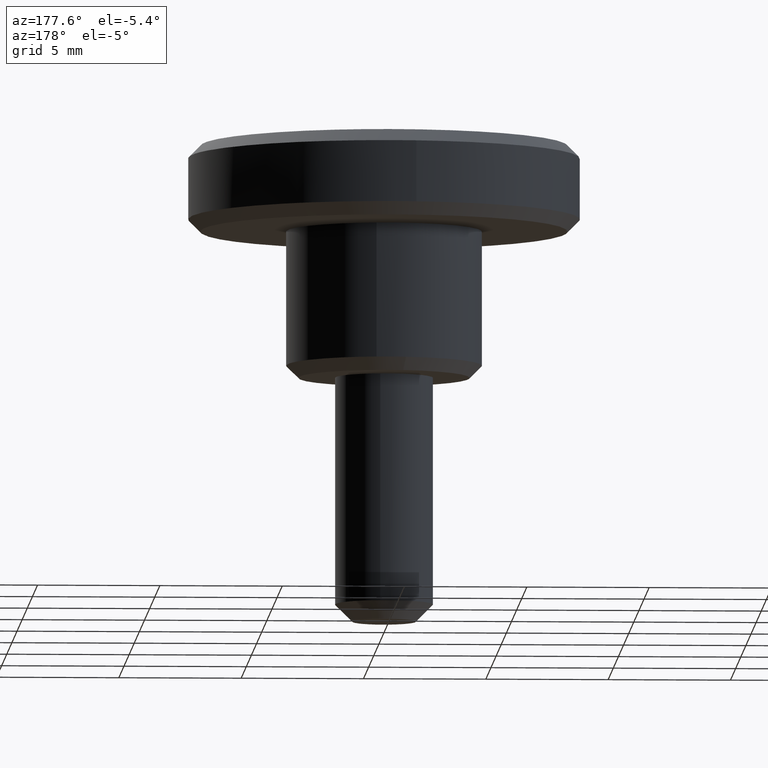
[diagram: clean part render]
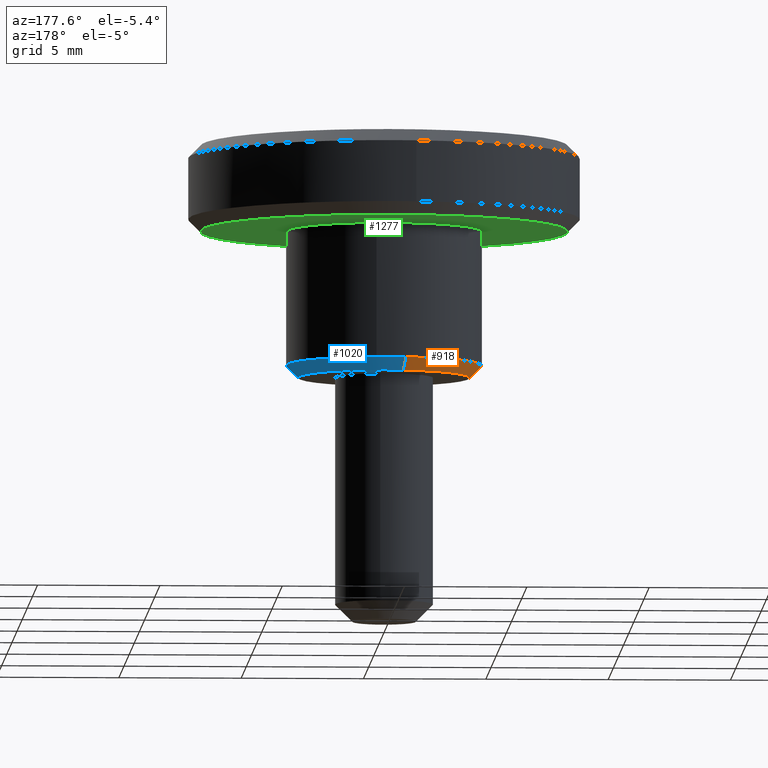
[diagram: same view with three faces highlighted in distinct colors, each labeled with its STEP entity id]
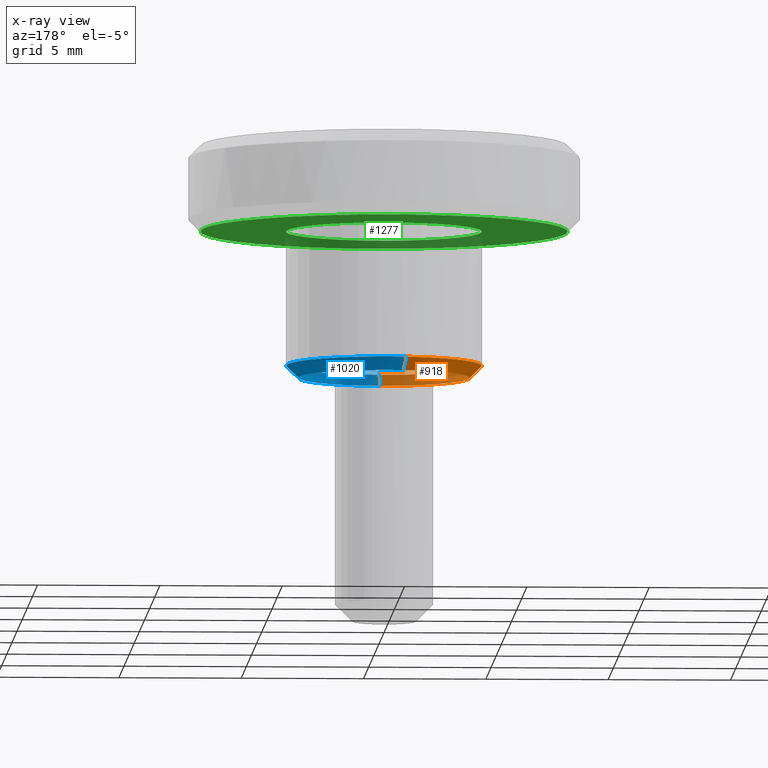
[diagram: x-ray of the same camera — body ghosted, the three highlighted faces saturated]
A machine part, auxiliary view with three faces highlighted in distinct colors.
The next image is the same camera in x-ray (body ghosted, the three faces saturated) — at least one of them is partly hidden behind the body in this view.
Their STEP definitions:

[orange] entity #918 — the highlighted face is a freeform B-spline surface patch.
#805=CARTESIAN_POINT('',(-0.638643656009242,3.428525999702869,-0.012499999999999));
#806=CARTESIAN_POINT('',(-3.512880776151094,2.893131692410479,-0.012499999999999));
#807=CARTESIAN_POINT('',(-3.487367206686213,-0.030433792550578,-0.012499999999999));
#808=CARTESIAN_POINT('',(-3.456933414135635,-3.517800999236791,-0.012499999999999));
#809=CARTESIAN_POINT('',(0.030433792550578,-3.487367206686213,-0.012499999999999));
#810=CARTESIAN_POINT('',(-0.734840787348988,3.944955408797910,0.512812499999944));
#811=CARTESIAN_POINT('',(-4.042016312415441,3.328916134609593,0.512812499999944));
#812=CARTESIAN_POINT('',(-4.012659704395859,-0.035017950729568,0.512812499999944));
#813=CARTESIAN_POINT('',(-3.977641753666292,-4.047677655125426,0.512812499999944));
#814=CARTESIAN_POINT('',(0.035017950729568,-4.012659704395859,0.512812499999944));
#822=(BOUNDED_SURFACE()B_SPLINE_SURFACE(2,1,((#805,#810),(#806,#811),(#807,#812),(#808,#813),(#809,#814)),.UNSPECIFIED.,.F.,.F.,.U.)B_SPLINE_SURFACE_WITH_KNOTS((3,2,3),(2,2),(0.0,5.850807989876079,12.499453432917081),(0.0,1.0),.UNSPECIFIED.)GEOMETRIC_REPRESENTATION_ITEM()RATIONAL_B_SPLINE_SURFACE(((0.938140952186599,0.938140952186599),(0.742253967444162,0.742253967444162),(1.0,1.0),(0.707106781186548,0.707106781186548),(1.0,1.0)))REPRESENTATION_ITEM('')SURFACE());
#823=CARTESIAN_POINT('',(-0.732494484874874,3.932359535827230,0.499999961172962));
#824=VERTEX_POINT('',#823);
#825=CARTESIAN_POINT('',(-3.999999999999915,0.0,0.499999999999945));
#826=VERTEX_POINT('',#825);
#827=CARTESIAN_POINT('',(-0.732494484874874,3.932359535827230,0.499999961172962));
#828=CARTESIAN_POINT('',(-3.999999999999915,3.323709815139513,0.499999999999945));
#829=CARTESIAN_POINT('',(-3.999999999999915,0.0,0.499999999999945));
#837=(BOUNDED_CURVE()B_SPLINE_CURVE(2,(#827,#828,#829),.UNSPECIFIED.,.F.,.U.)B_SPLINE_CURVE_WITH_KNOTS((3,3),(0.281445261705507,0.500000000000000),.UNSPECIFIED.)CURVE()GEOMETRIC_REPRESENTATION_ITEM()RATIONAL_B_SPLINE_CURVE((0.935586820757660,0.743947196855977,1.0))REPRESENTATION_ITEM(''));
#838=EDGE_CURVE('',#824,#826,#837,.T.);
#839=ORIENTED_EDGE('',*,*,#838,.F.);
#840=CARTESIAN_POINT('',(-0.640932701404273,3.440814623355592,3.950849E-012));
#841=VERTEX_POINT('',#840);
#842=CARTESIAN_POINT('',(-0.640932701404273,3.440814623355592,3.950849E-012));
#843=CARTESIAN_POINT('',(-0.732494484874874,3.932359535827230,0.499999961172962));
#844=QUASI_UNIFORM_CURVE('',1,(#842,#843),.UNSPECIFIED.,.F.,.U.);
#845=EDGE_CURVE('',#841,#824,#844,.T.);
#846=ORIENTED_EDGE('',*,*,#845,.F.);
#847=CARTESIAN_POINT('',(-3.499999999999915,0.0,0.0));
#848=VERTEX_POINT('',#847);
#849=CARTESIAN_POINT('',(-3.499999999999915,0.0,0.0));
#850=CARTESIAN_POINT('',(-3.499999999999915,2.908246052280505,0.0));
#851=CARTESIAN_POINT('',(-0.640932701404273,3.440814623355592,3.950849E-012));
#859=(BOUNDED_CURVE()B_SPLINE_CURVE(2,(#849,#850,#851),.UNSPECIFIED.,.F.,.U.)B_SPLINE_CURVE_WITH_KNOTS((3,3),(0.500000000000000,0.718554736283687),.UNSPECIFIED.)CURVE()GEOMETRIC_REPRESENTATION_ITEM()RATIONAL_B_SPLINE_CURVE((1.0,0.743947199211783,0.935586817231312))REPRESENTATION_ITEM(''));
#860=EDGE_CURVE('',#848,#841,#859,.T.);
#861=ORIENTED_EDGE('',*,*,#860,.F.);
#862=CARTESIAN_POINT('',(0.030542874245997,-3.499866730724729,2.288360E-013));
#863=VERTEX_POINT('',#862);
#864=CARTESIAN_POINT('',(0.030542874245997,-3.499866730724729,2.288360E-013));
#865=CARTESIAN_POINT('',(0.015271727874142,-3.499999999999915,0.0));
#866=CARTESIAN_POINT('',(0.0,-3.499999999999915,0.0));
#867=CARTESIAN_POINT('',(-3.499999999999915,-3.499999999999915,0.0));
#868=CARTESIAN_POINT('',(-3.499999999999915,0.0,0.0));
#876=(BOUNDED_CURVE()B_SPLINE_CURVE(2,(#864,#865,#866,#867,#868),.UNSPECIFIED.,.F.,.U.)B_SPLINE_CURVE_WITH_KNOTS((3,2,3),(0.248460105664843,0.250000000000000,0.500000000000000),.UNSPECIFIED.)CURVE()GEOMETRIC_REPRESENTATION_ITEM()RATIONAL_B_SPLINE_CURVE((0.996414028100013,0.998195901566173,1.0,0.707106781186547,1.0))REPRESENTATION_ITEM(''));
#877=EDGE_CURVE('',#863,#848,#876,.T.);
#878=ORIENTED_EDGE('',*,*,#877,.F.);
#879=CARTESIAN_POINT('',(0.034906143496061,-3.999847692853440,0.500000000609875));
#880=VERTEX_POINT('',#879);
#881=CARTESIAN_POINT('',(0.030542874245997,-3.499866730724729,2.288360E-013));
#882=CARTESIAN_POINT('',(0.034906143496061,-3.999847692853440,0.500000000609875));
#883=QUASI_UNIFORM_CURVE('',1,(#881,#882),.UNSPECIFIED.,.F.,.U.);
#884=EDGE_CURVE('',#863,#880,#883,.T.);
#885=ORIENTED_EDGE('',*,*,#884,.T.);
#886=CARTESIAN_POINT('',(-0.244191056338046,-3.992539383399263,0.499999999999933));
#887=VERTEX_POINT('',#886);
#888=CARTESIAN_POINT('',(-0.244191056338046,-3.992539383399263,0.499999999999933));
#889=CARTESIAN_POINT('',(-0.122209497945183,-3.999999999999915,0.499999999999945));
#890=CARTESIAN_POINT('',(0.0,-3.999999999999915,0.499999999999945));
#891=CARTESIAN_POINT('',(0.017453404780140,-3.999999999999916,0.499999999999945));
#892=CARTESIAN_POINT('',(0.034906143496061,-3.999847692853441,0.500000000609875));
#900=(BOUNDED_CURVE()B_SPLINE_CURVE(2,(#888,#889,#890,#891,#892),.UNSPECIFIED.,.F.,.U.)B_SPLINE_CURVE_WITH_KNOTS((3,2,3),(0.739333096293482,0.750000000000000,0.751539894466857),.UNSPECIFIED.)CURVE()GEOMETRIC_REPRESENTATION_ITEM()RATIONAL_B_SPLINE_CURVE((0.976072328971282,0.987502944954500,1.0,0.998195901411877,0.996414027795222))REPRESENTATION_ITEM(''));
#901=EDGE_CURVE('',#887,#880,#900,.T.);
#902=ORIENTED_EDGE('',*,*,#901,.F.);
#903=CARTESIAN_POINT('',(-3.999999999999915,0.0,0.499999999999945));
#904=CARTESIAN_POINT('',(-3.999999999999916,-3.762827196422415,0.499999999999945));
#905=CARTESIAN_POINT('',(-0.244191056338046,-3.992539383399263,0.499999999999933));
#913=(BOUNDED_CURVE()B_SPLINE_CURVE(2,(#903,#904,#905),.UNSPECIFIED.,.F.,.U.)B_SPLINE_CURVE_WITH_KNOTS((3,3),(0.500000000000000,0.739333096293482),.UNSPECIFIED.)CURVE()GEOMETRIC_REPRESENTATION_ITEM()RATIONAL_B_SPLINE_CURVE((1.0,0.719603836232048,0.976072328971282))REPRESENTATION_ITEM(''));
#914=EDGE_CURVE('',#826,#887,#913,.T.);
#915=ORIENTED_EDGE('',*,*,#914,.F.);
#916=EDGE_LOOP('',(#839,#846,#861,#878,#885,#902,#915));
#917=FACE_OUTER_BOUND('',#916,.T.);
#918=ADVANCED_FACE('',(#917),#822,.T.);

[blue] entity #1020 — the highlighted face is a freeform B-spline surface patch.
#823=CARTESIAN_POINT('',(-0.732494484874874,3.932359535827230,0.499999961172962));
#824=VERTEX_POINT('',#823);
#840=CARTESIAN_POINT('',(-0.640932701404273,3.440814623355592,3.950849E-012));
#841=VERTEX_POINT('',#840);
#842=CARTESIAN_POINT('',(-0.640932701404273,3.440814623355592,3.950849E-012));
#843=CARTESIAN_POINT('',(-0.732494484874874,3.932359535827230,0.499999961172962));
#844=QUASI_UNIFORM_CURVE('',1,(#842,#843),.UNSPECIFIED.,.F.,.U.);
#845=EDGE_CURVE('',#841,#824,#844,.T.);
#862=CARTESIAN_POINT('',(0.030542874245997,-3.499866730724729,2.288360E-013));
#863=VERTEX_POINT('',#862);
#879=CARTESIAN_POINT('',(0.034906143496061,-3.999847692853440,0.500000000609875));
#880=VERTEX_POINT('',#879);
#881=CARTESIAN_POINT('',(0.030542874245997,-3.499866730724729,2.288360E-013));
#882=CARTESIAN_POINT('',(0.034906143496061,-3.999847692853440,0.500000000609875));
#883=QUASI_UNIFORM_CURVE('',1,(#881,#882),.UNSPECIFIED.,.F.,.U.);
#884=EDGE_CURVE('',#863,#880,#883,.T.);
#919=CARTESIAN_POINT('',(0.030433792550578,-3.487367206686213,-0.012499999999999));
#920=CARTESIAN_POINT('',(3.517800999236791,-3.456933414135635,-0.012499999999999));
#921=CARTESIAN_POINT('',(3.487367206686213,0.030433792550578,-0.012499999999999));
#922=CARTESIAN_POINT('',(3.456933414135635,3.517800999236791,-0.012499999999999));
#923=CARTESIAN_POINT('',(-0.030433792550578,3.487367206686213,-0.012499999999999));
#924=CARTESIAN_POINT('',(-0.337126083670598,3.484690743609163,-0.012499999999999));
#925=CARTESIAN_POINT('',(-0.638643656009242,3.428525999702869,-0.012499999999999));
#926=CARTESIAN_POINT('',(0.035017950729568,-4.012659704395859,0.512812499999944));
#927=CARTESIAN_POINT('',(4.047677655125426,-3.977641753666292,0.512812499999944));
#928=CARTESIAN_POINT('',(4.012659704395859,0.035017950729568,0.512812499999944));
#929=CARTESIAN_POINT('',(3.977641753666292,4.047677655125426,0.512812499999944));
#930=CARTESIAN_POINT('',(-0.035017950729568,4.012659704395859,0.512812499999944));
#931=CARTESIAN_POINT('',(-0.387906455234243,4.009580093072168,0.512812499999944));
#932=CARTESIAN_POINT('',(-0.734840787348988,3.944955408797910,0.512812499999944));
#940=(BOUNDED_SURFACE()B_SPLINE_SURFACE(2,1,((#919,#926),(#920,#927),(#921,#928),(#922,#929),(#923,#930),(#924,#931),(#925,#932)),.UNSPECIFIED.,.F.,.F.,.U.)B_SPLINE_SURFACE_WITH_KNOTS((3,2,2,3),(2,2),(0.0,6.648645443041000,13.297290886081999,14.095128339246919),(0.0,1.0),.UNSPECIFIED.)GEOMETRIC_REPRESENTATION_ITEM()RATIONAL_B_SPLINE_SURFACE(((1.0,1.0),(0.707106781186548,0.707106781186548),(1.0,1.0),(0.707106781186548,0.707106781186548),(1.0,1.0),(0.964852813742386,0.964852813742386),(0.938140952186599,0.938140952186599)))REPRESENTATION_ITEM('')SURFACE());
#941=CARTESIAN_POINT('',(0.472136242154244,3.972038188240805,0.499999999999946));
#942=VERTEX_POINT('',#941);
#943=CARTESIAN_POINT('',(0.472136242154244,3.972038188240805,0.499999999999946));
#944=CARTESIAN_POINT('',(0.236895774771856,3.999999999999915,0.499999999999945));
#945=CARTESIAN_POINT('',(0.0,3.999999999999915,0.499999999999945));
#946=CARTESIAN_POINT('',(-0.369370279233281,3.999999999999915,0.499999999999945));
#947=CARTESIAN_POINT('',(-0.732494484874874,3.932359535827229,0.499999961172962));
#955=(BOUNDED_CURVE()B_SPLINE_CURVE(2,(#943,#944,#945,#946,#947),.UNSPECIFIED.,.F.,.U.)B_SPLINE_CURVE_WITH_KNOTS((3,2,3),(0.229562532783036,0.250000000000000,0.281445261705508),.UNSPECIFIED.)CURVE()GEOMETRIC_REPRESENTATION_ITEM()RATIONAL_B_SPLINE_CURVE((0.956026870354431,0.976056017769715,1.0,0.963159584330570,0.935586820757659))REPRESENTATION_ITEM(''));
#956=EDGE_CURVE('',#942,#824,#955,.T.);
#957=ORIENTED_EDGE('',*,*,#956,.F.);
#958=CARTESIAN_POINT('',(3.999999999999915,0.0,0.499999999999945));
#959=VERTEX_POINT('',#958);
#960=CARTESIAN_POINT('',(3.999999999999915,0.0,0.499999999999945));
#961=CARTESIAN_POINT('',(3.999999999999916,3.552699358464333,0.499999999999945));
#962=CARTESIAN_POINT('',(0.472136242154244,3.972038188240805,0.499999999999946));
#970=(BOUNDED_CURVE()B_SPLINE_CURVE(2,(#960,#961,#962),.UNSPECIFIED.,.F.,.U.)B_SPLINE_CURVE_WITH_KNOTS((3,3),(0.0,0.229562532783035),.UNSPECIFIED.)CURVE()GEOMETRIC_REPRESENTATION_ITEM()RATIONAL_B_SPLINE_CURVE((1.0,0.731050763416832,0.956026870354431))REPRESENTATION_ITEM(''));
#971=EDGE_CURVE('',#959,#942,#970,.T.);
#972=ORIENTED_EDGE('',*,*,#971,.F.);
#973=CARTESIAN_POINT('',(0.034906143496061,-3.999847692853441,0.500000000609875));
#974=CARTESIAN_POINT('',(3.999999999999914,-3.965244839411134,0.499999999999945));
#975=CARTESIAN_POINT('',(3.999999999999915,0.0,0.499999999999945));
#983=(BOUNDED_CURVE()B_SPLINE_CURVE(2,(#973,#974,#975),.UNSPECIFIED.,.F.,.U.)B_SPLINE_CURVE_WITH_KNOTS((3,3),(0.751539894466856,1.0),.UNSPECIFIED.)CURVE()GEOMETRIC_REPRESENTATION_ITEM()RATIONAL_B_SPLINE_CURVE((0.996414027795223,0.708910879774670,1.0))REPRESENTATION_ITEM(''));
#984=EDGE_CURVE('',#880,#959,#983,.T.);
#985=ORIENTED_EDGE('',*,*,#984,.F.);
#986=ORIENTED_EDGE('',*,*,#884,.F.);
#987=CARTESIAN_POINT('',(3.499999999999915,0.0,0.0));
#988=VERTEX_POINT('',#987);
#989=CARTESIAN_POINT('',(3.499999999999915,0.0,0.0));
#990=CARTESIAN_POINT('',(3.499999999999914,-3.469589237078992,0.0));
#991=CARTESIAN_POINT('',(0.030542874245997,-3.499866730724729,2.288360E-013));
#999=(BOUNDED_CURVE()B_SPLINE_CURVE(2,(#989,#990,#991),.UNSPECIFIED.,.F.,.U.)B_SPLINE_CURVE_WITH_KNOTS((3,3),(0.0,0.248460105664843),.UNSPECIFIED.)CURVE()GEOMETRIC_REPRESENTATION_ITEM()RATIONAL_B_SPLINE_CURVE((1.0,0.708910879620374,0.996414028100012))REPRESENTATION_ITEM(''));
#1000=EDGE_CURVE('',#988,#863,#999,.T.);
#1001=ORIENTED_EDGE('',*,*,#1000,.F.);
#1002=CARTESIAN_POINT('',(-0.640932701404273,3.440814623355592,3.950849E-012));
#1003=CARTESIAN_POINT('',(-0.323199015786998,3.499999999999915,0.0));
#1004=CARTESIAN_POINT('',(0.0,3.499999999999915,0.0));
#1005=CARTESIAN_POINT('',(3.499999999999915,3.499999999999915,0.0));
#1006=CARTESIAN_POINT('',(3.499999999999915,0.0,0.0));
#1014=(BOUNDED_CURVE()B_SPLINE_CURVE(2,(#1002,#1003,#1004,#1005,#1006),.UNSPECIFIED.,.F.,.U.)B_SPLINE_CURVE_WITH_KNOTS((3,2,3),(0.718554736283686,0.750000000000000,1.0),.UNSPECIFIED.)CURVE()GEOMETRIC_REPRESENTATION_ITEM()RATIONAL_B_SPLINE_CURVE((0.935586817231310,0.963159581974764,1.0,0.707106781186547,1.0))REPRESENTATION_ITEM(''));
#1015=EDGE_CURVE('',#841,#988,#1014,.T.);
#1016=ORIENTED_EDGE('',*,*,#1015,.F.);
#1017=ORIENTED_EDGE('',*,*,#845,.T.);
#1018=EDGE_LOOP('',(#957,#972,#985,#986,#1001,#1016,#1017));
#1019=FACE_OUTER_BOUND('',#1018,.T.);
#1020=ADVANCED_FACE('',(#1019),#940,.T.);

[green] entity #1277 — the highlighted face is a freeform B-spline surface patch.
#645=CARTESIAN_POINT('',(3.031615739919216,6.859978571795065,6.000000000000922));
#646=VERTEX_POINT('',#645);
#652=CARTESIAN_POINT('',(-7.500000000000000,0.0,6.0));
#653=VERTEX_POINT('',#652);
#654=CARTESIAN_POINT('',(-7.500000000000000,0.0,6.0));
#655=CARTESIAN_POINT('',(-7.500000000000000,7.500000000000000,6.0));
#656=CARTESIAN_POINT('',(0.0,7.500000000000000,6.0));
#657=CARTESIAN_POINT('',(1.583367129400306,7.500000000000000,6.000000000000002));
#658=CARTESIAN_POINT('',(3.031615739919216,6.859978571795065,6.000000000000922));
#666=(BOUNDED_CURVE()B_SPLINE_CURVE(2,(#654,#655,#656,#657,#658),.UNSPECIFIED.,.F.,.U.)B_SPLINE_CURVE_WITH_KNOTS((3,2,3),(0.0,0.250000000000000,0.318638421540512),.UNSPECIFIED.)CURVE()GEOMETRIC_REPRESENTATION_ITEM()RATIONAL_B_SPLINE_CURVE((1.0,0.707106781186547,1.0,0.919585087122899,0.883326595751414))REPRESENTATION_ITEM(''));
#667=EDGE_CURVE('',#653,#646,#666,.T.);
#669=CARTESIAN_POINT('',(0.065449016255902,-7.499714422983574,6.000000000002476));
#670=VERTEX_POINT('',#669);
#671=CARTESIAN_POINT('',(0.065449016255902,-7.499714422983574,6.000000000002476));
#672=CARTESIAN_POINT('',(0.032725131173339,-7.500000000000001,6.0));
#673=CARTESIAN_POINT('',(0.0,-7.500000000000000,6.0));
#674=CARTESIAN_POINT('',(-7.500000000000000,-7.500000000000000,6.0));
#675=CARTESIAN_POINT('',(-7.500000000000000,0.0,6.0));
#683=(BOUNDED_CURVE()B_SPLINE_CURVE(2,(#671,#672,#673,#674,#675),.UNSPECIFIED.,.F.,.U.)B_SPLINE_CURVE_WITH_KNOTS((3,2,3),(0.748460105664164,0.750000000000000,1.0),.UNSPECIFIED.)CURVE()GEOMETRIC_REPRESENTATION_ITEM()RATIONAL_B_SPLINE_CURVE((0.996414028098441,0.998195901565377,1.0,0.707106781186547,1.0))REPRESENTATION_ITEM(''));
#684=EDGE_CURVE('',#670,#653,#683,.T.);
#773=CARTESIAN_POINT('',(7.500000000000000,0.0,6.0));
#774=VERTEX_POINT('',#773);
#775=CARTESIAN_POINT('',(7.500000000000000,0.0,6.0));
#776=CARTESIAN_POINT('',(7.499999999999999,-7.434834079426476,5.999999999999999));
#777=CARTESIAN_POINT('',(0.065449016255902,-7.499714422983575,6.000000000002476));
#785=(BOUNDED_CURVE()B_SPLINE_CURVE(2,(#775,#776,#777),.UNSPECIFIED.,.F.,.U.)B_SPLINE_CURVE_WITH_KNOTS((3,3),(0.500000000000000,0.748460105664163),.UNSPECIFIED.)CURVE()GEOMETRIC_REPRESENTATION_ITEM()RATIONAL_B_SPLINE_CURVE((1.0,0.708910879621171,0.996414028098440))REPRESENTATION_ITEM(''));
#786=EDGE_CURVE('',#774,#670,#785,.T.);
#788=CARTESIAN_POINT('',(3.031615739919216,6.859978571795065,6.000000000000922));
#789=CARTESIAN_POINT('',(7.500000000000000,4.885275019421942,5.999999999999999));
#790=CARTESIAN_POINT('',(7.500000000000000,0.0,6.0));
#798=(BOUNDED_CURVE()B_SPLINE_CURVE(2,(#788,#789,#790),.UNSPECIFIED.,.F.,.U.)B_SPLINE_CURVE_WITH_KNOTS((3,3),(0.318638421540512,0.500000000000000),.UNSPECIFIED.)CURVE()GEOMETRIC_REPRESENTATION_ITEM()RATIONAL_B_SPLINE_CURVE((0.883326595751414,0.787521694063649,1.0))REPRESENTATION_ITEM(''));
#799=EDGE_CURVE('',#646,#774,#798,.T.);
#1046=CARTESIAN_POINT('',(-0.244191093747291,-3.992539381111274,6.0));
#1047=VERTEX_POINT('',#1046);
#1053=CARTESIAN_POINT('',(-3.999999999999915,0.0,6.0));
#1054=VERTEX_POINT('',#1053);
#1055=CARTESIAN_POINT('',(-3.999999999999915,0.0,6.0));
#1056=CARTESIAN_POINT('',(-3.999999999999916,-3.762827161099644,6.000000000000002));
#1057=CARTESIAN_POINT('',(-0.244191093747291,-3.992539381111274,6.0));
#1065=(BOUNDED_CURVE()B_SPLINE_CURVE(2,(#1055,#1056,#1057),.UNSPECIFIED.,.F.,.U.)B_SPLINE_CURVE_WITH_KNOTS((3,3),(0.500000000000000,0.739333094676755),.UNSPECIFIED.)CURVE()GEOMETRIC_REPRESENTATION_ITEM()RATIONAL_B_SPLINE_CURVE((1.0,0.719603838126161,0.976072325506324))REPRESENTATION_ITEM(''));
#1066=EDGE_CURVE('',#1054,#1047,#1065,.T.);
#1068=CARTESIAN_POINT('',(0.472136250534668,3.972038187244667,6.0));
#1069=VERTEX_POINT('',#1068);
#1070=CARTESIAN_POINT('',(0.472136250534668,3.972038187244666,6.0));
#1071=CARTESIAN_POINT('',(0.236895783240877,3.999999999999916,6.0));
#1072=CARTESIAN_POINT('',(0.0,3.999999999999915,6.0));
#1073=CARTESIAN_POINT('',(-3.999999999999915,3.999999999999915,6.0));
#1074=CARTESIAN_POINT('',(-3.999999999999915,0.0,6.0));
#1082=(BOUNDED_CURVE()B_SPLINE_CURVE(2,(#1070,#1071,#1072,#1073,#1074),.UNSPECIFIED.,.F.,.U.)B_SPLINE_CURVE_WITH_KNOTS((3,2,3),(0.229562532069891,0.250000000000000,0.500000000000000),.UNSPECIFIED.)CURVE()GEOMETRIC_REPRESENTATION_ITEM()RATIONAL_B_SPLINE_CURVE((0.956026868956637,0.976056016934214,1.0,0.707106781186547,1.0))REPRESENTATION_ITEM(''));
#1083=EDGE_CURVE('',#1069,#1054,#1082,.T.);
#1113=CARTESIAN_POINT('',(3.999999999999915,0.0,6.0));
#1114=VERTEX_POINT('',#1113);
#1115=CARTESIAN_POINT('',(3.999999999999915,0.0,6.0));
#1116=CARTESIAN_POINT('',(3.999999999999916,3.552699343367440,6.0));
#1117=CARTESIAN_POINT('',(0.472136250534668,3.972038187244666,6.0));
#1125=(BOUNDED_CURVE()B_SPLINE_CURVE(2,(#1115,#1116,#1117),.UNSPECIFIED.,.F.,.U.)B_SPLINE_CURVE_WITH_KNOTS((3,3),(0.0,0.229562532069891),.UNSPECIFIED.)CURVE()GEOMETRIC_REPRESENTATION_ITEM()RATIONAL_B_SPLINE_CURVE((1.0,0.731050764252333,0.956026868956637))REPRESENTATION_ITEM(''));
#1126=EDGE_CURVE('',#1114,#1069,#1125,.T.);
#1128=CARTESIAN_POINT('',(-0.244191093747291,-3.992539381111274,6.0));
#1129=CARTESIAN_POINT('',(-0.122209516702248,-3.999999999999915,5.999999999999999));
#1130=CARTESIAN_POINT('',(0.0,-3.999999999999915,6.0));
#1131=CARTESIAN_POINT('',(3.999999999999915,-3.999999999999915,6.0));
#1132=CARTESIAN_POINT('',(3.999999999999915,0.0,6.0));
#1140=(BOUNDED_CURVE()B_SPLINE_CURVE(2,(#1128,#1129,#1130,#1131,#1132),.UNSPECIFIED.,.F.,.U.)B_SPLINE_CURVE_WITH_KNOTS((3,2,3),(0.739333094676755,0.750000000000000,1.0),.UNSPECIFIED.)CURVE()GEOMETRIC_REPRESENTATION_ITEM()RATIONAL_B_SPLINE_CURVE((0.976072325506324,0.987502943060386,1.0,0.707106781186547,1.0))REPRESENTATION_ITEM(''));
#1141=EDGE_CURVE('',#1047,#1114,#1140,.T.);
#1260=CARTESIAN_POINT('',(-8.249249970927089,8.247853337672353,6.0));
#1261=CARTESIAN_POINT('',(8.249250373258443,8.247853337672353,6.0));
#1262=CARTESIAN_POINT('',(-8.249249970927089,-8.248883842375875,6.0));
#1263=CARTESIAN_POINT('',(8.249250373258443,-8.248883842375875,6.0));
#1264=B_SPLINE_SURFACE_WITH_KNOTS('',1,1,((#1260,#1262),(#1261,#1263)),.UNSPECIFIED.,.F.,.F.,.U.,(2,2),(2,2),(0.0,16.498500344185530),(0.0,16.496737180048228),.UNSPECIFIED.);
#1265=ORIENTED_EDGE('',*,*,#667,.T.);
#1266=ORIENTED_EDGE('',*,*,#799,.T.);
#1267=ORIENTED_EDGE('',*,*,#786,.T.);
#1268=ORIENTED_EDGE('',*,*,#684,.T.);
#1269=EDGE_LOOP('',(#1265,#1266,#1267,#1268));
#1270=FACE_OUTER_BOUND('',#1269,.T.);
#1271=ORIENTED_EDGE('',*,*,#1066,.T.);
#1272=ORIENTED_EDGE('',*,*,#1141,.T.);
#1273=ORIENTED_EDGE('',*,*,#1126,.T.);
#1274=ORIENTED_EDGE('',*,*,#1083,.T.);
#1275=EDGE_LOOP('',(#1271,#1272,#1273,#1274));
#1276=FACE_BOUND('',#1275,.T.);
#1277=ADVANCED_FACE('',(#1270,#1276),#1264,.T.);